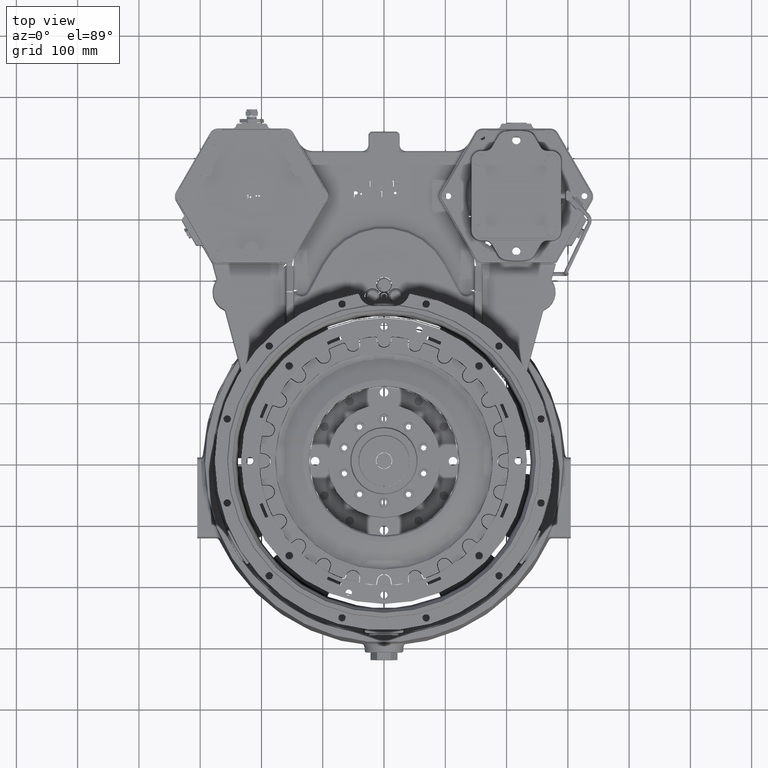
[diagram: clean part render]
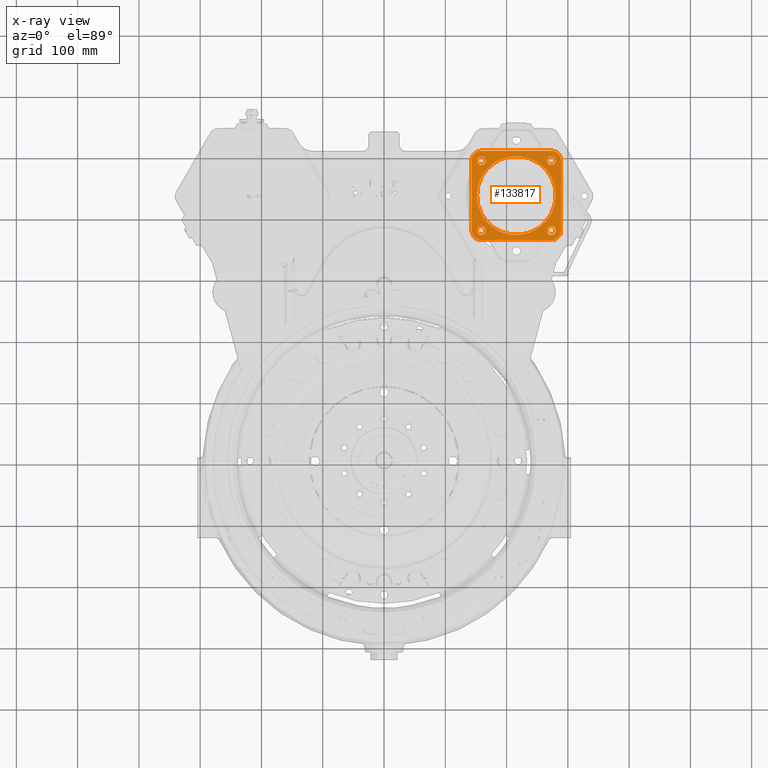
[diagram: x-ray — body ghosted, one internal face saturated and labeled with its STEP entity id]
A machine part, top view, then the same camera in x-ray: the body is ghosted and one INTERNAL B-rep face — a face not visible from any outside direction — is saturated and labeled: STEP entity #133817.
In plain terms, the highlighted planar face has unit normal (-0, 0, 1).
Its self-contained STEP definition (entity closure, byte-faithful):
#841 = CARTESIAN_POINT ( 'NONE',  ( 142.8750000000023900, 377.3677999999986800, 4.876799999997509800 ) ) ;
#974 = CIRCLE ( 'NONE', #28446, 7.143750000000004300 ) ;
#1441 = CARTESIAN_POINT ( 'NONE',  ( 165.8937500000024000, 377.4947999999986900, 4.876799999997509800 ) ) ;
#2870 = ORIENTED_EDGE ( 'NONE', *, *, #118222, .F. ) ;
#3528 = AXIS2_PLACEMENT_3D ( 'NONE', #31102, #133154, #45765 ) ;
#5558 = CARTESIAN_POINT ( 'NONE',  ( 288.9250000000024600, 377.3677999999986800, 4.876799999997509800 ) ) ;
#6150 = ORIENTED_EDGE ( 'NONE', *, *, #164664, .F. ) ;
#7589 = CARTESIAN_POINT ( 'NONE',  ( 273.1770000000024700, 361.6197999999986900, 4.876799999997509800 ) ) ;
#7687 = ORIENTED_EDGE ( 'NONE', *, *, #138361, .F. ) ;
#8435 = AXIS2_PLACEMENT_3D ( 'NONE', #110604, #23211, #125292 ) ;
#9628 = VERTEX_POINT ( 'NONE', #1441 ) ;
#11004 = EDGE_CURVE ( 'NONE', #171773, #36793, #178533, .T. ) ;
#11949 = DIRECTION ( 'NONE',  ( 1.000000000000000000, 0.0000000000000000000, 0.0000000000000000000 ) ) ;
#12583 = DIRECTION ( 'NONE',  ( -1.000000000000000000, -0.0000000000000000000, -0.0000000000000000000 ) ) ;
#14498 = ORIENTED_EDGE ( 'NONE', *, *, #95621, .F. ) ;
#14587 = ORIENTED_EDGE ( 'NONE', *, *, #118344, .T. ) ;
#15425 = DIRECTION ( 'NONE',  ( -0.0000000000000000000, -0.0000000000000000000, 1.000000000000000000 ) ) ;
#15947 = AXIS2_PLACEMENT_3D ( 'NONE', #186847, #99379, #11949 ) ;
#16428 = ORIENTED_EDGE ( 'NONE', *, *, #11004, .T. ) ;
#16463 = CARTESIAN_POINT ( 'NONE',  ( 273.0500000000024600, 491.7947999999986500, 4.876799999997509800 ) ) ;
#19983 = AXIS2_PLACEMENT_3D ( 'NONE', #114002, #26637, #128699 ) ;
#20240 = EDGE_CURVE ( 'NONE', #110632, #171773, #156935, .T. ) ;
#21261 = CIRCLE ( 'NONE', #90447, 7.143750000000004300 ) ;
#21582 = CIRCLE ( 'NONE', #15947, 7.143750000000004300 ) ;
#23211 = DIRECTION ( 'NONE',  ( -0.0000000000000000000, 0.0000000000000000000, 1.000000000000000000 ) ) ;
#23617 = DIRECTION ( 'NONE',  ( -0.0000000000000000000, -0.0000000000000000000, 1.000000000000000000 ) ) ;
#24048 = CIRCLE ( 'NONE', #8435, 15.74799999999998300 ) ;
#26637 = DIRECTION ( 'NONE',  ( -0.0000000000000000000, -0.0000000000000000000, 1.000000000000000000 ) ) ;
#26768 = AXIS2_PLACEMENT_3D ( 'NONE', #115320, #27976, #130023 ) ;
#27027 = EDGE_CURVE ( 'NONE', #149184, #79762, #24048, .T. ) ;
#27202 = FACE_BOUND ( 'NONE', #127909, .T. ) ;
#27283 = EDGE_CURVE ( 'NONE', #153101, #150092, #158671, .T. ) ;
#27447 = CARTESIAN_POINT ( 'NONE',  ( 265.9062500000024400, 377.4947999999986900, 4.876799999997509800 ) ) ;
#27976 = DIRECTION ( 'NONE',  ( 0.0000000000000000000, 0.0000000000000000000, 1.000000000000000000 ) ) ;
#28383 = VERTEX_POINT ( 'NONE', #68033 ) ;
#28446 = AXIS2_PLACEMENT_3D ( 'NONE', #102869, #15425, #117443 ) ;
#29954 = CARTESIAN_POINT ( 'NONE',  ( 158.7500000000023900, 491.7947999999986500, 4.876799999997509800 ) ) ;
#30949 = ORIENTED_EDGE ( 'NONE', *, *, #27283, .F. ) ;
#31102 = CARTESIAN_POINT ( 'NONE',  ( 273.1770000000024700, 491.9217999999986500, 4.876799999997509800 ) ) ;
#31142 = DIRECTION ( 'NONE',  ( 1.000000000000000000, 0.0000000000000000000, 0.0000000000000000000 ) ) ;
#31758 = CIRCLE ( 'NONE', #3528, 15.74799999999998300 ) ;
#32111 = DIRECTION ( 'NONE',  ( -0.0000000000000000000, -0.0000000000000000000, 1.000000000000000000 ) ) ;
#34194 = AXIS2_PLACEMENT_3D ( 'NONE', #167347, #79955, #182090 ) ;
#35323 = ORIENTED_EDGE ( 'NONE', *, *, #40707, .T. ) ;
#36161 = CARTESIAN_POINT ( 'NONE',  ( 273.1770000000024700, 507.6697999999986500, 4.876799999997509800 ) ) ;
#36793 = VERTEX_POINT ( 'NONE', #108148 ) ;
#37083 = DIRECTION ( 'NONE',  ( -0.0000000000000000000, 0.0000000000000000000, 1.000000000000000000 ) ) ;
#39025 = CARTESIAN_POINT ( 'NONE',  ( 142.8750000000023900, 361.6197999999986900, 4.876799999997509800 ) ) ;
#39225 = CARTESIAN_POINT ( 'NONE',  ( 158.6230000000024100, 507.6697999999986500, 4.876799999997509800 ) ) ;
#40707 = EDGE_CURVE ( 'NONE', #116223, #149184, #168477, .T. ) ;
#43305 = VERTEX_POINT ( 'NONE', #841 ) ;
#44632 = DIRECTION ( 'NONE',  ( 1.000000000000000000, 0.0000000000000000000, 0.0000000000000000000 ) ) ;
#45273 = EDGE_LOOP ( 'NONE', ( #81219, #187756, #16428, #14587, #35323, #120021, #133066, #103300 ) ) ;
#45765 = DIRECTION ( 'NONE',  ( 1.000000000000000000, 0.0000000000000000000, 0.0000000000000000000 ) ) ;
#46284 = CARTESIAN_POINT ( 'NONE',  ( 265.9062500000024400, 491.7947999999986500, 4.876799999997509800 ) ) ;
#49570 = AXIS2_PLACEMENT_3D ( 'NONE', #39025, #141052, #53640 ) ;
#49703 = CIRCLE ( 'NONE', #59920, 7.143750000000004300 ) ;
#51978 = VECTOR ( 'NONE', #12583, 1000.000000000000000 ) ;
#52047 = CIRCLE ( 'NONE', #175569, 15.74799999999998300 ) ;
#53640 = DIRECTION ( 'NONE',  ( 1.000000000000000000, 0.0000000000000000000, 0.0000000000000000000 ) ) ;
#58367 = CARTESIAN_POINT ( 'NONE',  ( 142.8750000000023900, 491.9217999999986500, 4.876799999997509800 ) ) ;
#59846 = EDGE_CURVE ( 'NONE', #144898, #97747, #21582, .T. ) ;
#59920 = AXIS2_PLACEMENT_3D ( 'NONE', #148714, #61305, #163406 ) ;
#61305 = DIRECTION ( 'NONE',  ( -0.0000000000000000000, -0.0000000000000000000, 1.000000000000000000 ) ) ;
#61425 = FACE_OUTER_BOUND ( 'NONE', #45273, .T. ) ;
#62888 = DIRECTION ( 'NONE',  ( -0.0000000000000000000, 0.0000000000000000000, 1.000000000000000000 ) ) ;
#66011 = FACE_BOUND ( 'NONE', #96123, .T. ) ;
#68033 = CARTESIAN_POINT ( 'NONE',  ( 280.1937500000024700, 377.4947999999986900, 4.876799999997509800 ) ) ;
#69550 = AXIS2_PLACEMENT_3D ( 'NONE', #119465, #32111, #134134 ) ;
#70498 = DIRECTION ( 'NONE',  ( -0.0000000000000000000, 1.000000000000000000, -0.0000000000000000000 ) ) ;
#75255 = ORIENTED_EDGE ( 'NONE', *, *, #59846, .F. ) ;
#75442 = CIRCLE ( 'NONE', #69550, 7.143750000000004300 ) ;
#77401 = CARTESIAN_POINT ( 'NONE',  ( 158.6230000000024100, 361.6197999999986900, 4.876799999997509800 ) ) ;
#79762 = VERTEX_POINT ( 'NONE', #58367 ) ;
#79955 = DIRECTION ( 'NONE',  ( 0.0000000000000000000, 0.0000000000000000000, 1.000000000000000000 ) ) ;
#80993 = CARTESIAN_POINT ( 'NONE',  ( 142.8750000000023900, 507.6697999999986500, 4.876799999997509800 ) ) ;
#81219 = ORIENTED_EDGE ( 'NONE', *, *, #137737, .T. ) ;
#81369 = VERTEX_POINT ( 'NONE', #77401 ) ;
#81370 = CIRCLE ( 'NONE', #109391, 7.143750000000004300 ) ;
#83283 = ORIENTED_EDGE ( 'NONE', *, *, #166546, .F. ) ;
#84630 = VERTEX_POINT ( 'NONE', #97658 ) ;
#87687 = ORIENTED_EDGE ( 'NONE', *, *, #128848, .F. ) ;
#90447 = AXIS2_PLACEMENT_3D ( 'NONE', #110991, #23617, #125691 ) ;
#91458 = VECTOR ( 'NONE', #125143, 1000.000000000000000 ) ;
#94752 = ORIENTED_EDGE ( 'NONE', *, *, #131302, .F. ) ;
#95618 = DIRECTION ( 'NONE',  ( 0.0000000000000000000, -1.000000000000000000, 0.0000000000000000000 ) ) ;
#95621 = EDGE_CURVE ( 'NONE', #97747, #144898, #81370, .T. ) ;
#96123 = EDGE_LOOP ( 'NONE', ( #7687, #139339 ) ) ;
#97658 = CARTESIAN_POINT ( 'NONE',  ( 151.6062500000023800, 491.7947999999986500, 4.876799999997509800 ) ) ;
#97715 = LINE ( 'NONE', #80993, #170762 ) ;
#97747 = VERTEX_POINT ( 'NONE', #148192 ) ;
#99379 = DIRECTION ( 'NONE',  ( -0.0000000000000000000, -0.0000000000000000000, 1.000000000000000000 ) ) ;
#100298 = FACE_BOUND ( 'NONE', #127800, .T. ) ;
#102869 = CARTESIAN_POINT ( 'NONE',  ( 158.7500000000023900, 491.7947999999986500, 4.876799999997509800 ) ) ;
#103300 = ORIENTED_EDGE ( 'NONE', *, *, #121974, .T. ) ;
#108148 = CARTESIAN_POINT ( 'NONE',  ( 288.9250000000024600, 491.9217999999986500, 4.876799999997509800 ) ) ;
#109377 = EDGE_CURVE ( 'NONE', #79762, #43305, #97715, .T. ) ;
#109391 = AXIS2_PLACEMENT_3D ( 'NONE', #16463, #118478, #31142 ) ;
#110604 = CARTESIAN_POINT ( 'NONE',  ( 158.6230000000024100, 491.9217999999986500, 4.876799999997509800 ) ) ;
#110632 = VERTEX_POINT ( 'NONE', #7589 ) ;
#110991 = CARTESIAN_POINT ( 'NONE',  ( 273.0500000000024600, 377.4947999999986900, 4.876799999997509800 ) ) ;
#114002 = CARTESIAN_POINT ( 'NONE',  ( 273.0500000000024600, 377.4947999999986900, 4.876799999997509800 ) ) ;
#115272 = CARTESIAN_POINT ( 'NONE',  ( 142.8750000000023900, 507.6697999999986500, 4.876799999997509800 ) ) ;
#115320 = CARTESIAN_POINT ( 'NONE',  ( 215.9000000000023900, 434.6447999999986700, 4.876799999997509800 ) ) ;
#115692 = CARTESIAN_POINT ( 'NONE',  ( 288.9250000000024600, 507.6697999999986500, 4.876799999997509800 ) ) ;
#116223 = VERTEX_POINT ( 'NONE', #36161 ) ;
#117443 = DIRECTION ( 'NONE',  ( 1.000000000000000000, 0.0000000000000000000, 0.0000000000000000000 ) ) ;
#118222 = EDGE_CURVE ( 'NONE', #150092, #153101, #189435, .T. ) ;
#118344 = EDGE_CURVE ( 'NONE', #36793, #116223, #31758, .T. ) ;
#118478 = DIRECTION ( 'NONE',  ( -0.0000000000000000000, -0.0000000000000000000, 1.000000000000000000 ) ) ;
#119465 = CARTESIAN_POINT ( 'NONE',  ( 158.7500000000023900, 377.4947999999986900, 4.876799999997509800 ) ) ;
#120021 = ORIENTED_EDGE ( 'NONE', *, *, #27027, .T. ) ;
#121239 = CARTESIAN_POINT ( 'NONE',  ( 165.8937500000024000, 491.7947999999986500, 4.876799999997509800 ) ) ;
#121974 = EDGE_CURVE ( 'NONE', #43305, #81369, #52047, .T. ) ;
#124439 = CARTESIAN_POINT ( 'NONE',  ( 158.6230000000024100, 377.3677999999986800, 4.876799999997509800 ) ) ;
#124507 = CARTESIAN_POINT ( 'NONE',  ( 142.8750000000023900, 361.6197999999986900, 4.876799999997509800 ) ) ;
#125143 = DIRECTION ( 'NONE',  ( 1.000000000000000000, 0.0000000000000000000, 0.0000000000000000000 ) ) ;
#125292 = DIRECTION ( 'NONE',  ( 1.000000000000000000, 0.0000000000000000000, 0.0000000000000000000 ) ) ;
#125691 = DIRECTION ( 'NONE',  ( 1.000000000000000000, 0.0000000000000000000, 0.0000000000000000000 ) ) ;
#126449 = EDGE_LOOP ( 'NONE', ( #2870, #30949 ) ) ;
#127322 = CIRCLE ( 'NONE', #19983, 7.143750000000004300 ) ;
#127800 = EDGE_LOOP ( 'NONE', ( #14498, #75255 ) ) ;
#127909 = EDGE_LOOP ( 'NONE', ( #6150, #87687 ) ) ;
#128699 = DIRECTION ( 'NONE',  ( 1.000000000000000000, 0.0000000000000000000, 0.0000000000000000000 ) ) ;
#128848 = EDGE_CURVE ( 'NONE', #134672, #9628, #75442, .T. ) ;
#130023 = DIRECTION ( 'NONE',  ( 1.000000000000000000, 0.0000000000000000000, 0.0000000000000000000 ) ) ;
#130277 = LINE ( 'NONE', #124507, #91458 ) ;
#131302 = EDGE_CURVE ( 'NONE', #172706, #84630, #974, .T. ) ;
#131984 = DIRECTION ( 'NONE',  ( -0.0000000000000000000, -0.0000000000000000000, 1.000000000000000000 ) ) ;
#133066 = ORIENTED_EDGE ( 'NONE', *, *, #109377, .T. ) ;
#133154 = DIRECTION ( 'NONE',  ( -0.0000000000000000000, 0.0000000000000000000, 1.000000000000000000 ) ) ;
#133817 = ADVANCED_FACE ( 'NONE', ( #177951, #27202, #100298, #66011, #139034, #61425 ), #167899, .T. ) ;
#134134 = DIRECTION ( 'NONE',  ( 1.000000000000000000, 0.0000000000000000000, 0.0000000000000000000 ) ) ;
#134672 = VERTEX_POINT ( 'NONE', #146549 ) ;
#137737 = EDGE_CURVE ( 'NONE', #81369, #110632, #130277, .T. ) ;
#138361 = EDGE_CURVE ( 'NONE', #28383, #183868, #127322, .T. ) ;
#139034 = FACE_BOUND ( 'NONE', #126449, .T. ) ;
#139116 = DIRECTION ( 'NONE',  ( 1.000000000000000000, 0.0000000000000000000, 0.0000000000000000000 ) ) ;
#139339 = ORIENTED_EDGE ( 'NONE', *, *, #154032, .F. ) ;
#139883 = AXIS2_PLACEMENT_3D ( 'NONE', #29954, #131984, #44632 ) ;
#141052 = DIRECTION ( 'NONE',  ( -0.0000000000000000000, 0.0000000000000000000, 1.000000000000000000 ) ) ;
#144898 = VERTEX_POINT ( 'NONE', #46284 ) ;
#146549 = CARTESIAN_POINT ( 'NONE',  ( 151.6062500000023800, 377.4947999999986900, 4.876799999997509800 ) ) ;
#148192 = CARTESIAN_POINT ( 'NONE',  ( 280.1937500000024700, 491.7947999999986500, 4.876799999997509800 ) ) ;
#148714 = CARTESIAN_POINT ( 'NONE',  ( 158.7500000000023900, 377.4947999999986900, 4.876799999997509800 ) ) ;
#149184 = VERTEX_POINT ( 'NONE', #39225 ) ;
#150092 = VERTEX_POINT ( 'NONE', #172363 ) ;
#150241 = CARTESIAN_POINT ( 'NONE',  ( 273.1770000000024700, 377.3677999999986800, 4.876799999997509800 ) ) ;
#153101 = VERTEX_POINT ( 'NONE', #159553 ) ;
#154032 = EDGE_CURVE ( 'NONE', #183868, #28383, #21261, .T. ) ;
#156935 = CIRCLE ( 'NONE', #160677, 15.74799999999998300 ) ;
#158671 = CIRCLE ( 'NONE', #34194, 64.26200000000001500 ) ;
#159553 = CARTESIAN_POINT ( 'NONE',  ( 151.6380000000023900, 434.6447999999986700, 4.876799999997509800 ) ) ;
#160275 = CIRCLE ( 'NONE', #139883, 7.143750000000004300 ) ;
#160677 = AXIS2_PLACEMENT_3D ( 'NONE', #150241, #62888, #164959 ) ;
#163406 = DIRECTION ( 'NONE',  ( 1.000000000000000000, 0.0000000000000000000, 0.0000000000000000000 ) ) ;
#164664 = EDGE_CURVE ( 'NONE', #9628, #134672, #49703, .T. ) ;
#164959 = DIRECTION ( 'NONE',  ( 1.000000000000000000, 0.0000000000000000000, 0.0000000000000000000 ) ) ;
#166546 = EDGE_CURVE ( 'NONE', #84630, #172706, #160275, .T. ) ;
#167347 = CARTESIAN_POINT ( 'NONE',  ( 215.9000000000023900, 434.6447999999986700, 4.876799999997509800 ) ) ;
#167899 = PLANE ( 'NONE',  #49570 ) ;
#168477 = LINE ( 'NONE', #115272, #51978 ) ;
#170762 = VECTOR ( 'NONE', #95618, 1000.000000000000000 ) ;
#171773 = VERTEX_POINT ( 'NONE', #5558 ) ;
#172363 = CARTESIAN_POINT ( 'NONE',  ( 280.1620000000024200, 434.6447999999986700, 4.876799999997509800 ) ) ;
#172706 = VERTEX_POINT ( 'NONE', #121239 ) ;
#173416 = EDGE_LOOP ( 'NONE', ( #94752, #83283 ) ) ;
#173949 = VECTOR ( 'NONE', #70498, 1000.000000000000000 ) ;
#175569 = AXIS2_PLACEMENT_3D ( 'NONE', #124439, #37083, #139116 ) ;
#177951 = FACE_BOUND ( 'NONE', #173416, .T. ) ;
#178533 = LINE ( 'NONE', #115692, #173949 ) ;
#182090 = DIRECTION ( 'NONE',  ( 1.000000000000000000, 0.0000000000000000000, 0.0000000000000000000 ) ) ;
#183868 = VERTEX_POINT ( 'NONE', #27447 ) ;
#186847 = CARTESIAN_POINT ( 'NONE',  ( 273.0500000000024600, 491.7947999999986500, 4.876799999997509800 ) ) ;
#187756 = ORIENTED_EDGE ( 'NONE', *, *, #20240, .T. ) ;
#189435 = CIRCLE ( 'NONE', #26768, 64.26200000000001500 ) ;